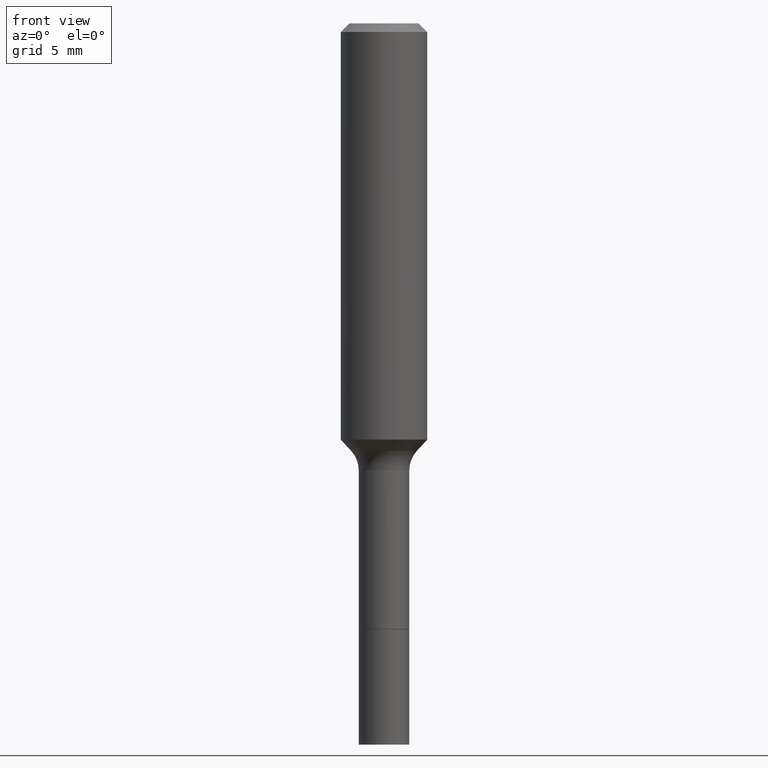
[diagram: clean part render]
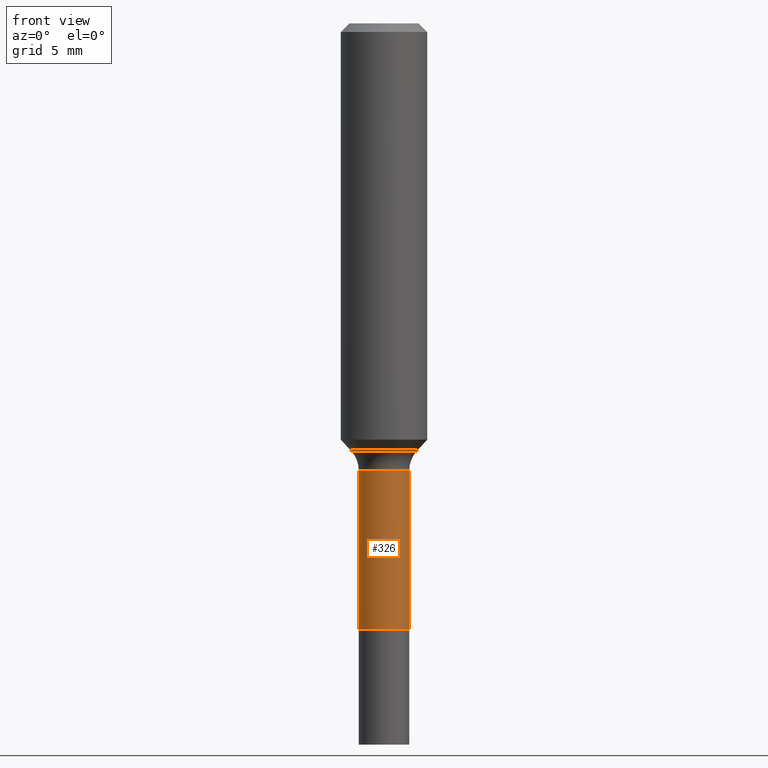
[diagram: same view with one face highlighted and labeled with its STEP entity id]
A machine part, front view. The second image highlights one B-rep face of the part: STEP entity #326.
In plain terms, the highlighted cylindrical surface (edge-blend (fillet) strip) has radius 1.7501 mm, axis along (-0, 0, 1).
Its self-contained STEP definition (entity closure, byte-faithful):
#15 = LINE ( 'NONE', #315, #287 ) ;
#23 = DIRECTION ( 'NONE',  ( -2.445468806185136877E-29, 3.491481338843145188E-15, 1.000000000000000000 ) ) ;
#29 = EDGE_CURVE ( 'NONE', #433, #173, #382, .T. ) ;
#40 = CARTESIAN_POINT ( 'NONE',  ( -0.06890000000000001679, -4.526821868644179362E-15, -1.653000000000000025 ) ) ;
#48 = DIRECTION ( 'NONE',  ( -2.445468806185136597E-29, 3.491481338843145583E-15, 1.000000000000000000 ) ) ;
#58 = CARTESIAN_POINT ( 'NONE',  ( 0.06889999999999996128, -4.742479102550642766E-15, -1.220499999999999918 ) ) ;
#63 = DIRECTION ( 'NONE',  ( -2.445468806185136877E-29, 3.491481338843145188E-15, 1.000000000000000000 ) ) ;
#66 = VERTEX_POINT ( 'NONE', #58 ) ;
#71 = EDGE_CURVE ( 'NONE', #151, #66, #15, .T. ) ;
#125 = ORIENTED_EDGE ( 'NONE', *, *, #234, .T. ) ;
#132 = DIRECTION ( 'NONE',  ( 1.000000000000000000, -6.982962677686269866E-15, 0.000000000000000000 ) ) ;
#151 = VERTEX_POINT ( 'NONE', #257 ) ;
#173 = VERTEX_POINT ( 'NONE', #501 ) ;
#191 = CARTESIAN_POINT ( 'NONE',  ( 4.042359936624030960E-29, -5.771418653107719568E-15, -1.653000000000000025 ) ) ;
#200 = EDGE_LOOP ( 'NONE', ( #265, #125, #331, #353 ) ) ;
#234 = EDGE_CURVE ( 'NONE', #433, #151, #259, .T. ) ;
#257 = CARTESIAN_POINT ( 'NONE',  ( 0.06890000000000001679, -6.252544781600303306E-15, -1.653000000000000025 ) ) ;
#259 = CIRCLE ( 'NONE', #309, 0.06890000000000001679 ) ;
#261 = DIRECTION ( 'NONE',  ( -2.445468806185136597E-29, 3.491481338843145583E-15, 1.000000000000000000 ) ) ;
#265 = ORIENTED_EDGE ( 'NONE', *, *, #29, .F. ) ;
#287 = VECTOR ( 'NONE', #63, 39.37007874015748143 ) ;
#300 = DIRECTION ( 'NONE',  ( -2.445468806185136597E-29, 3.491481338843145583E-15, 1.000000000000000000 ) ) ;
#309 = AXIS2_PLACEMENT_3D ( 'NONE', #191, #261, #359 ) ;
#315 = CARTESIAN_POINT ( 'NONE',  ( 0.06889999999999997515, -4.811261284925836399E-16, 3.359685798523398567E-30 ) ) ;
#318 = CARTESIAN_POINT ( 'NONE',  ( -0.06889999999999997515, 4.895639449387088515E-16, -3.389146277185628616E-30 ) ) ;
#326 = ADVANCED_FACE ( 'NONE', ( #371 ), #486, .T. ) ;
#331 = ORIENTED_EDGE ( 'NONE', *, *, #71, .T. ) ;
#336 = VECTOR ( 'NONE', #23, 39.37007874015748143 ) ;
#353 = ORIENTED_EDGE ( 'NONE', *, *, #435, .F. ) ;
#359 = DIRECTION ( 'NONE',  ( 1.000000000000000000, -6.982962677686264344E-15, 0.000000000000000000 ) ) ;
#371 = FACE_OUTER_BOUND ( 'NONE', #200, .T. ) ;
#382 = LINE ( 'NONE', #318, #336 ) ;
#396 = CIRCLE ( 'NONE', #460, 0.06889999999999996128 ) ;
#433 = VERTEX_POINT ( 'NONE', #40 ) ;
#435 = EDGE_CURVE ( 'NONE', #173, #66, #396, .T. ) ;
#441 = AXIS2_PLACEMENT_3D ( 'NONE', #448, #300, #459 ) ;
#448 = CARTESIAN_POINT ( 'NONE',  ( 0.000000000000000000, 0.000000000000000000, 0.000000000000000000 ) ) ;
#459 = DIRECTION ( 'NONE',  ( 1.000000000000000000, -6.982962677686267499E-15, 4.876176775795935793E-29 ) ) ;
#460 = AXIS2_PLACEMENT_3D ( 'NONE', #516, #48, #132 ) ;
#486 = CYLINDRICAL_SURFACE ( 'NONE', #441, 0.06889999999999997515 ) ;
#501 = CARTESIAN_POINT ( 'NONE',  ( -0.06889999999999996128, -4.526821868644180150E-15, -1.220499999999999918 ) ) ;
#516 = CARTESIAN_POINT ( 'NONE',  ( 2.984694677948959472E-29, -4.261352974058059028E-15, -1.220499999999999918 ) ) ;